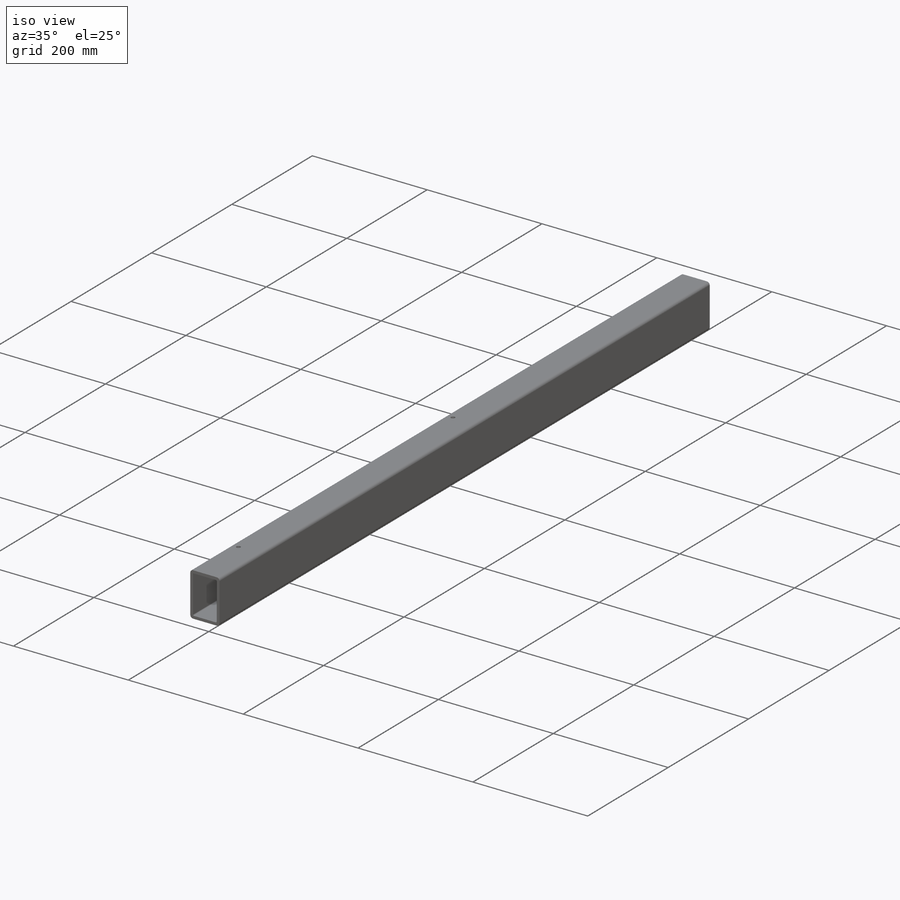
[diagram: iso view]
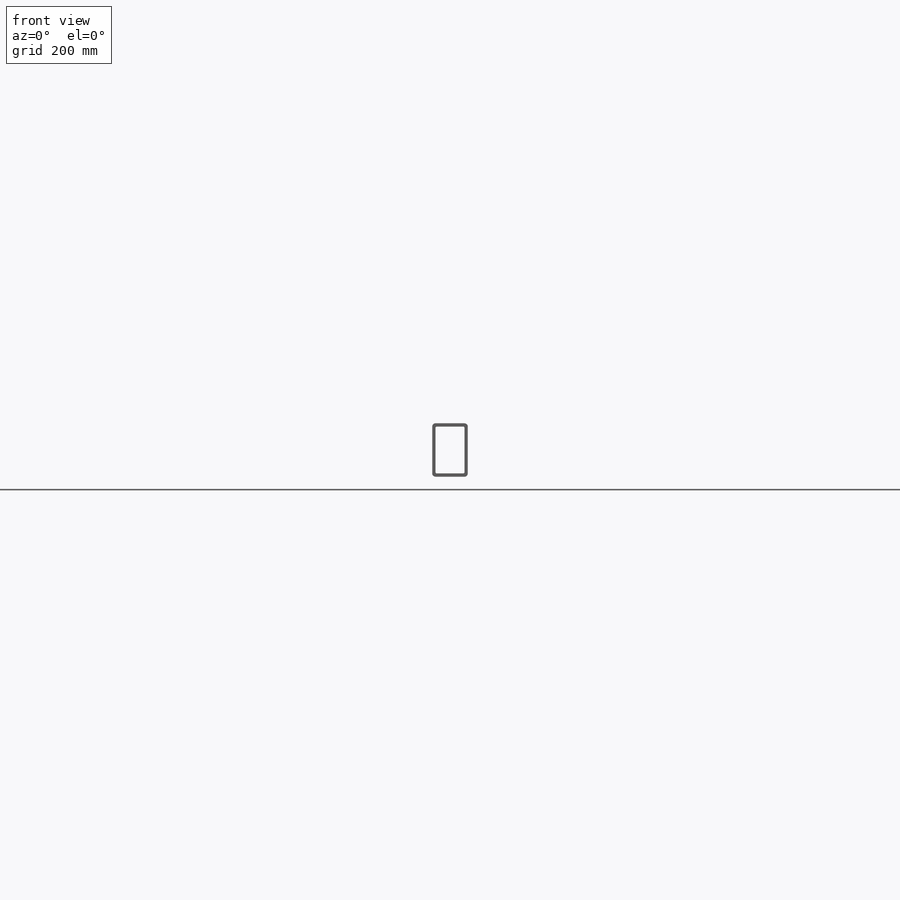
[diagram: front view]
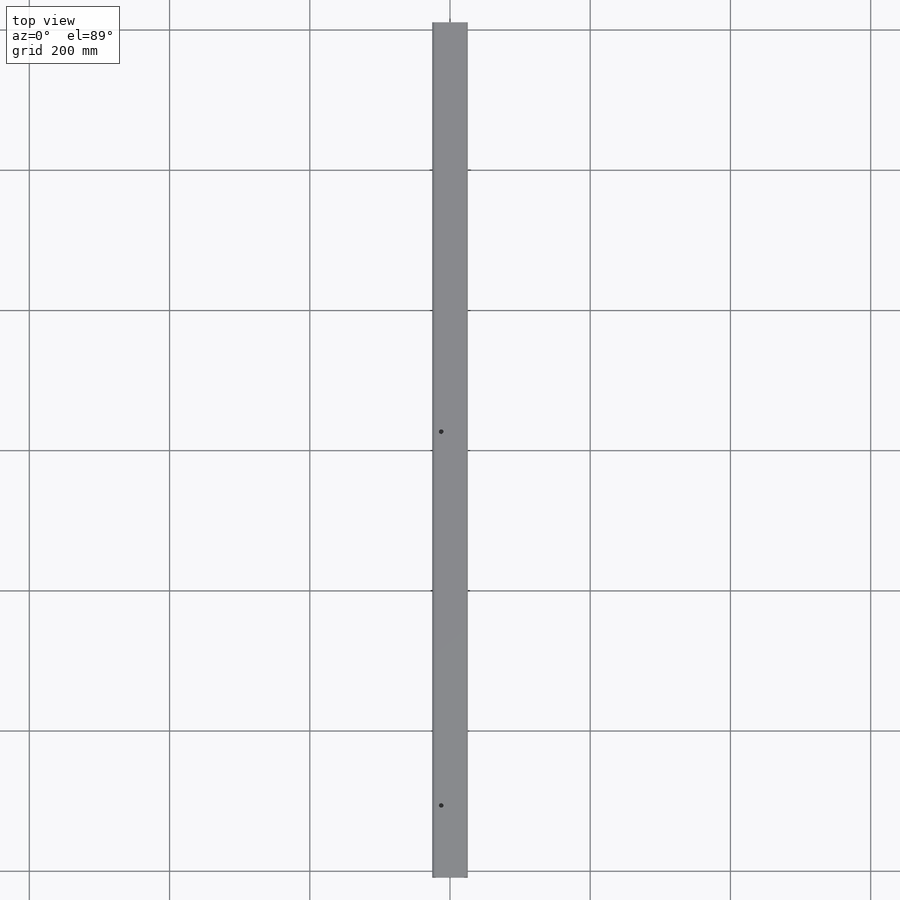
[diagram: top view]
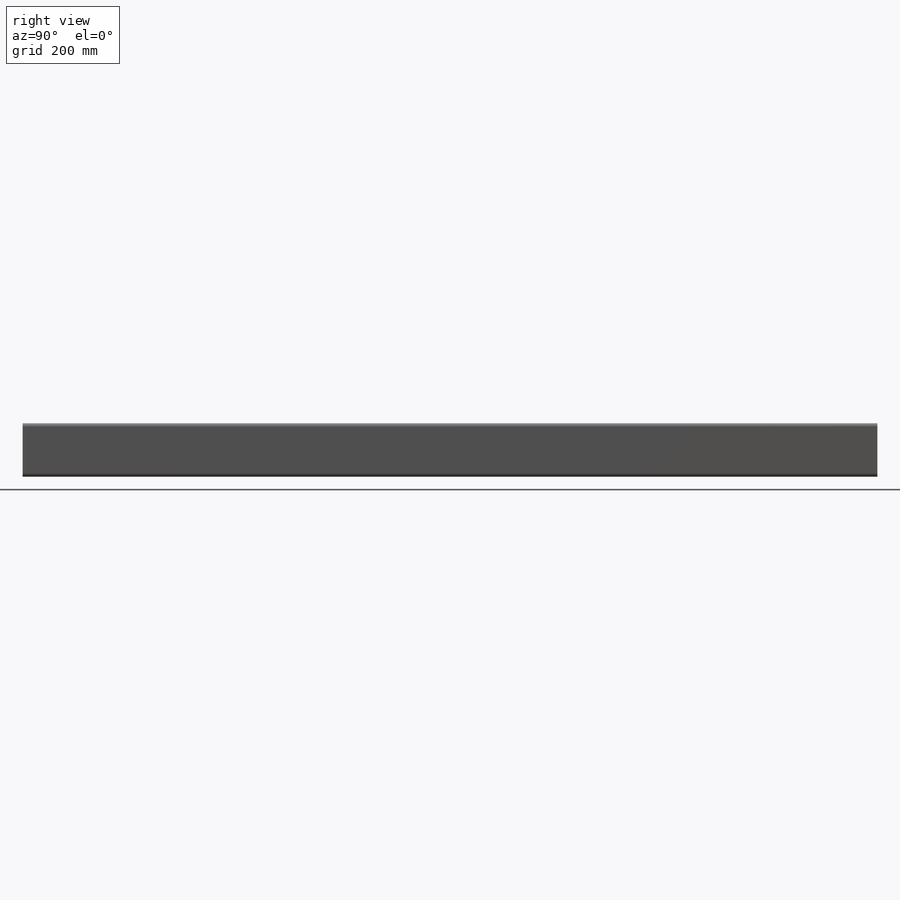
[diagram: right view]
SOLIDWORKS PART (.sldprt)
format: sldprt  version: not decoded by parser v0  size: 240,128 bytes
history: native  units: mm
features: sketch x6, material x1, extrude x1, hole x1, plane x1 (+12 scaffold rows collapsed)
feature tree (22):
  scaffold x12  (default folders/planes/origin — collapsed)
  material  "Material <not specified>"
  sketch  "Sketch1"  dims[D4=4.7625mm D5=1.5875mm D1=76.2mm D2=50.8mm D3=4.7625mm D6=4.7625mm]
  extrude  "Boss-Extrude1"  Depth=1219.2mm
  sketch  "Sketch2"  dims[D1=25.4mm D2=635.0mm D3=82.55mm]
  sketch  "Sketch3"  dims[D1=25.4mm D2=25.4mm D3=228.6mm D4=177.8mm]
  sketch  "Sketch4"
  hole  "5/16-18 Tapped Hole1"  Diameter=6.5278mm Depth=4.7625mm
  sketch  "Sketch7"  dims[D1=101.6mm D2=12.7mm D3=533.4mm]
  sketch  "Sketch6"  dims[hole-wizard template sketch: 59 standard entries collapsed; hole parameters kept: c18.Thread Major Dia.=6.5278mm c18.Thru Tap Drill Depth=4.7625mm]
  plane  "Plane1"  Offset=203.2mm
decode coverage: 7 of 8 modeling features carry decoded parameters
note: ~ marks probable driven/reference dimensions
note: suppression state not decoded; provenance and decode notes live in map.json
